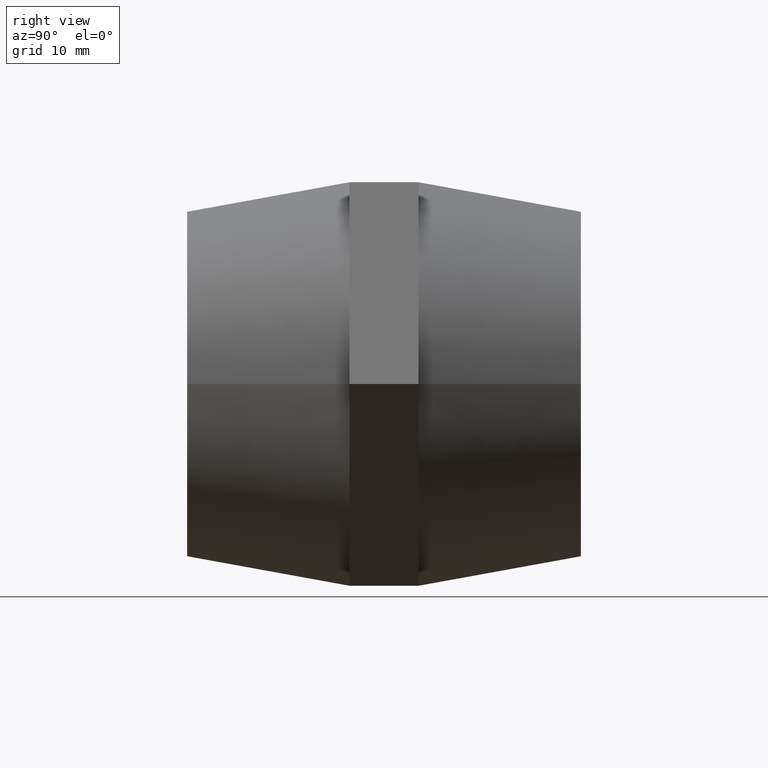
[diagram: clean part render]
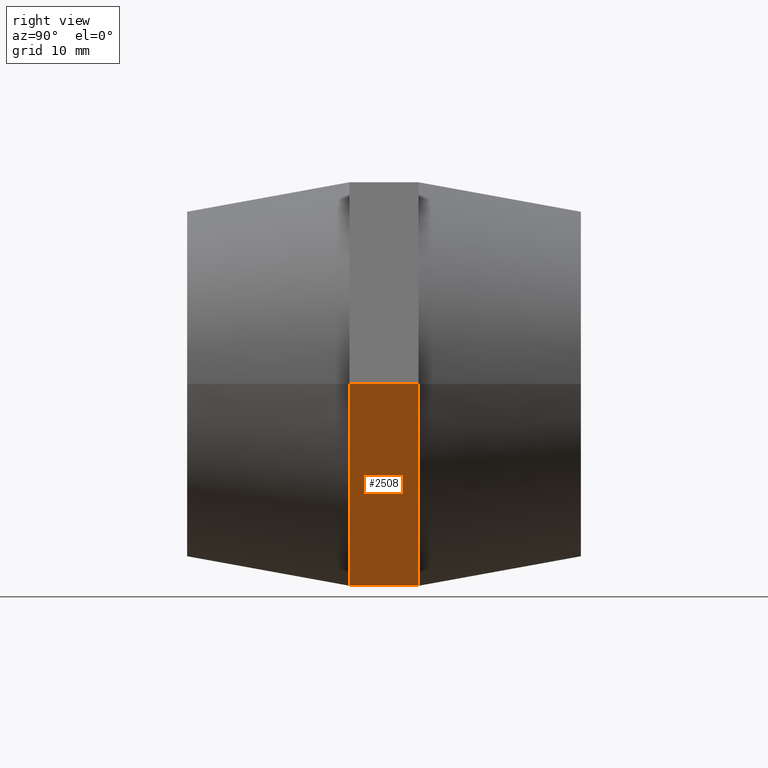
[diagram: same view with one face highlighted and labeled with its STEP entity id]
A machine part, right view. The second image highlights one B-rep face of the part: STEP entity #2508.
In plain terms, the highlighted planar face has unit normal (-0.866, 0, 0.5).
Its self-contained STEP definition (entity closure, byte-faithful):
#11 = ORIENTED_EDGE ( 'NONE', *, *, #925, .F. ) ;
#67 = VERTEX_POINT ( 'NONE', #341 ) ;
#145 = CARTESIAN_POINT ( 'NONE',  ( 11.83568051838732100, -3.500000000000000000, -20.50000000000000000 ) ) ;
#292 = VECTOR ( 'NONE', #2614, 1000.000000000000000 ) ;
#341 = CARTESIAN_POINT ( 'NONE',  ( 23.67136103677464800, 3.500000000000000000, -5.822956186009829800E-017 ) ) ;
#482 = CARTESIAN_POINT ( 'NONE',  ( 23.67136103677464800, 3.500000000000000000, -5.822956186009829800E-017 ) ) ;
#492 = LINE ( 'NONE', #3742, #3018 ) ;
#922 = CARTESIAN_POINT ( 'NONE',  ( 23.67136103677464800, -3.500000000000000000, -5.822956186009829800E-017 ) ) ;
#925 = EDGE_CURVE ( 'NONE', #67, #3754, #2888, .T. ) ;
#1093 = EDGE_CURVE ( 'NONE', #3754, #1523, #2493, .T. ) ;
#1146 = ORIENTED_EDGE ( 'NONE', *, *, #1196, .T. ) ;
#1196 = EDGE_CURVE ( 'NONE', #1385, #2079, #492, .T. ) ;
#1372 = ORIENTED_EDGE ( 'NONE', *, *, #3777, .F. ) ;
#1385 = VERTEX_POINT ( 'NONE', #2469 ) ;
#1399 = VECTOR ( 'NONE', #3680, 1000.000000000000000 ) ;
#1523 = VERTEX_POINT ( 'NONE', #3110 ) ;
#1529 = AXIS2_PLACEMENT_3D ( 'NONE', #1652, #2245, #3646 ) ;
#1593 = LINE ( 'NONE', #3313, #2549 ) ;
#1637 = DIRECTION ( 'NONE',  ( -0.4999999999999998900, 0.0000000000000000000, -0.8660254037844387100 ) ) ;
#1643 = CARTESIAN_POINT ( 'NONE',  ( 11.83568051838732100, 3.500000000000000000, -20.50000000000000000 ) ) ;
#1652 = CARTESIAN_POINT ( 'NONE',  ( 23.67136103677464800, 3.500000000000000000, -5.822956186009829800E-017 ) ) ;
#1653 = DIRECTION ( 'NONE',  ( 0.0000000000000000000, -1.000000000000000000, 0.0000000000000000000 ) ) ;
#1693 = VECTOR ( 'NONE', #1653, 1000.000000000000000 ) ;
#1743 = FACE_OUTER_BOUND ( 'NONE', #3134, .T. ) ;
#1806 = DIRECTION ( 'NONE',  ( 0.0000000000000000000, -1.000000000000000000, 0.0000000000000000000 ) ) ;
#2079 = VERTEX_POINT ( 'NONE', #145 ) ;
#2245 = DIRECTION ( 'NONE',  ( -0.8660254037844387100, 0.0000000000000000000, 0.4999999999999998900 ) ) ;
#2259 = CARTESIAN_POINT ( 'NONE',  ( 17.75352077758099900, 3.500000000000000000, -10.25000000000000000 ) ) ;
#2320 = EDGE_CURVE ( 'NONE', #67, #3016, #1593, .T. ) ;
#2400 = LINE ( 'NONE', #1643, #1693 ) ;
#2440 = CARTESIAN_POINT ( 'NONE',  ( 23.67136103677464800, -3.500000000000000000, -5.822956186009829800E-017 ) ) ;
#2469 = CARTESIAN_POINT ( 'NONE',  ( 17.75352077758099900, -3.500000000000000000, -10.25000000000000000 ) ) ;
#2493 = LINE ( 'NONE', #3554, #2735 ) ;
#2508 = ADVANCED_FACE ( 'NONE', ( #1743 ), #3462, .F. ) ;
#2549 = VECTOR ( 'NONE', #1806, 1000.000000000000000 ) ;
#2614 = DIRECTION ( 'NONE',  ( -0.4999999999999998900, 0.0000000000000000000, -0.8660254037844387100 ) ) ;
#2735 = VECTOR ( 'NONE', #3890, 1000.000000000000000 ) ;
#2888 = LINE ( 'NONE', #482, #292 ) ;
#3013 = LINE ( 'NONE', #922, #1399 ) ;
#3016 = VERTEX_POINT ( 'NONE', #2440 ) ;
#3018 = VECTOR ( 'NONE', #1637, 1000.000000000000000 ) ;
#3110 = CARTESIAN_POINT ( 'NONE',  ( 11.83568051838732100, 3.500000000000000000, -20.50000000000000000 ) ) ;
#3134 = EDGE_LOOP ( 'NONE', ( #3469, #1146, #1372, #3905, #11, #3472 ) ) ;
#3313 = CARTESIAN_POINT ( 'NONE',  ( 23.67136103677464800, 3.500000000000000000, -5.822956186009829800E-017 ) ) ;
#3462 = PLANE ( 'NONE',  #1529 ) ;
#3469 = ORIENTED_EDGE ( 'NONE', *, *, #3799, .T. ) ;
#3472 = ORIENTED_EDGE ( 'NONE', *, *, #2320, .T. ) ;
#3554 = CARTESIAN_POINT ( 'NONE',  ( 23.67136103677464800, 3.500000000000000000, -5.822956186009829800E-017 ) ) ;
#3646 = DIRECTION ( 'NONE',  ( 0.4999999999999998900, 0.0000000000000000000, 0.8660254037844387100 ) ) ;
#3680 = DIRECTION ( 'NONE',  ( -0.4999999999999998900, 0.0000000000000000000, -0.8660254037844387100 ) ) ;
#3742 = CARTESIAN_POINT ( 'NONE',  ( 23.67136103677464800, -3.500000000000000000, -5.822956186009829800E-017 ) ) ;
#3754 = VERTEX_POINT ( 'NONE', #2259 ) ;
#3777 = EDGE_CURVE ( 'NONE', #1523, #2079, #2400, .T. ) ;
#3799 = EDGE_CURVE ( 'NONE', #3016, #1385, #3013, .T. ) ;
#3890 = DIRECTION ( 'NONE',  ( -0.4999999999999998900, 0.0000000000000000000, -0.8660254037844387100 ) ) ;
#3905 = ORIENTED_EDGE ( 'NONE', *, *, #1093, .F. ) ;